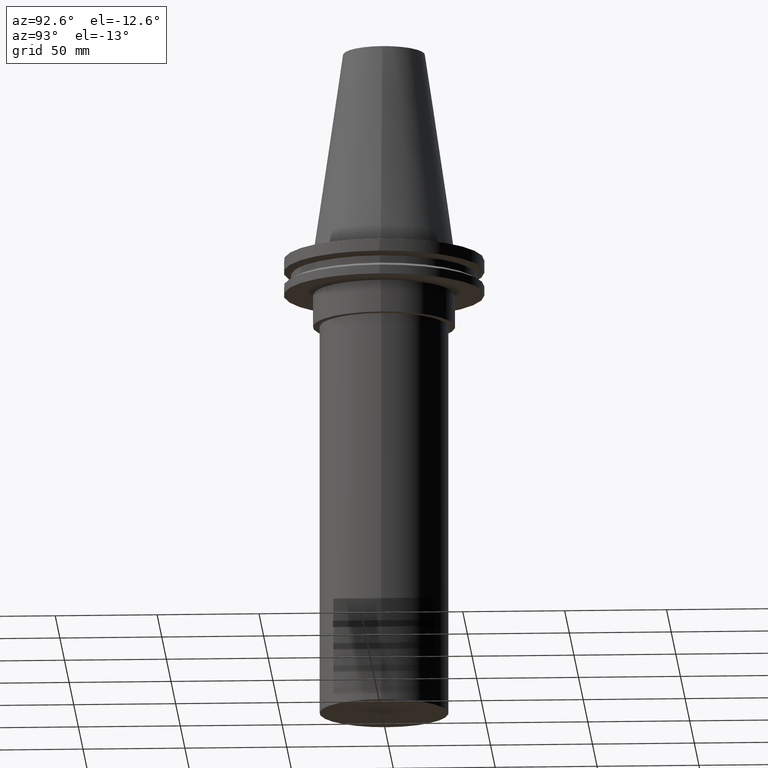
[diagram: clean part render]
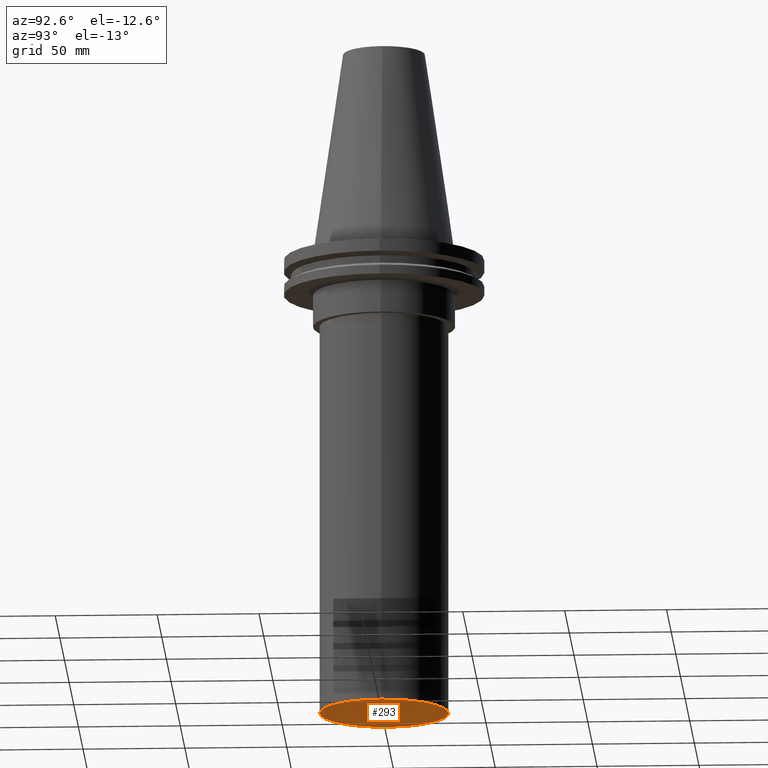
[diagram: same view with one face highlighted and labeled with its STEP entity id]
A machine part, auxiliary view. The second image highlights one B-rep face of the part: STEP entity #293.
In plain terms, the highlighted planar face has unit normal (0, -0, 1).
Its self-contained STEP definition (entity closure, byte-faithful):
#37 = CARTESIAN_POINT ( 'NONE',  ( 0.000000000000000000, 0.000000000000000000, -228.9999999999999716 ) ) ;
#53 = CARTESIAN_POINT ( 'NONE',  ( 0.000000000000000000, 31.63500000000000512, -228.9999999999999716 ) ) ;
#84 = DIRECTION ( 'NONE',  ( 0.000000000000000000, -0.000000000000000000, 1.000000000000000000 ) ) ;
#87 = PLANE ( 'NONE',  #203 ) ;
#101 = DIRECTION ( 'NONE',  ( -0.000000000000000000, -0.000000000000000000, 1.000000000000000000 ) ) ;
#115 = CIRCLE ( 'NONE', #281, 31.63500000000000512 ) ;
#143 = ORIENTED_EDGE ( 'NONE', *, *, #204, .F. ) ;
#202 = FACE_OUTER_BOUND ( 'NONE', #377, .T. ) ;
#203 = AXIS2_PLACEMENT_3D ( 'NONE', #53, #84, #362 ) ;
#204 = EDGE_CURVE ( 'NONE', #213, #213, #115, .T. ) ;
#213 = VERTEX_POINT ( 'NONE', #299 ) ;
#270 = DIRECTION ( 'NONE',  ( 1.000000000000000000, 0.000000000000000000, 0.000000000000000000 ) ) ;
#281 = AXIS2_PLACEMENT_3D ( 'NONE', #37, #101, #270 ) ;
#293 = ADVANCED_FACE ( 'NONE', ( #202 ), #87, .F. ) ;
#299 = CARTESIAN_POINT ( 'NONE',  ( 31.63500000000000512, 0.000000000000000000, -228.9999999999999716 ) ) ;
#362 = DIRECTION ( 'NONE',  ( 1.000000000000000000, 0.000000000000000000, 0.000000000000000000 ) ) ;
#377 = EDGE_LOOP ( 'NONE', ( #143 ) ) ;